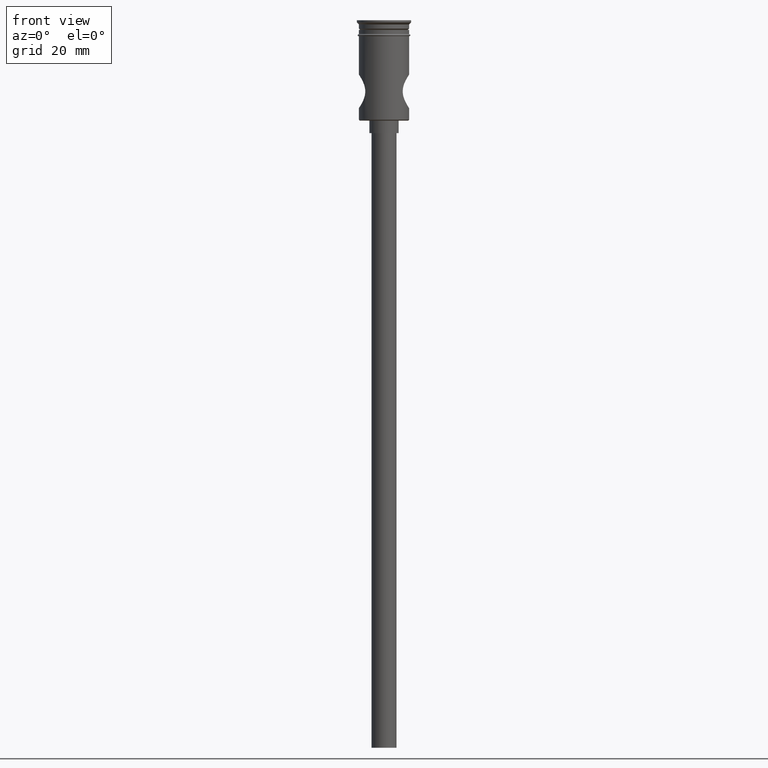
[diagram: clean part render]
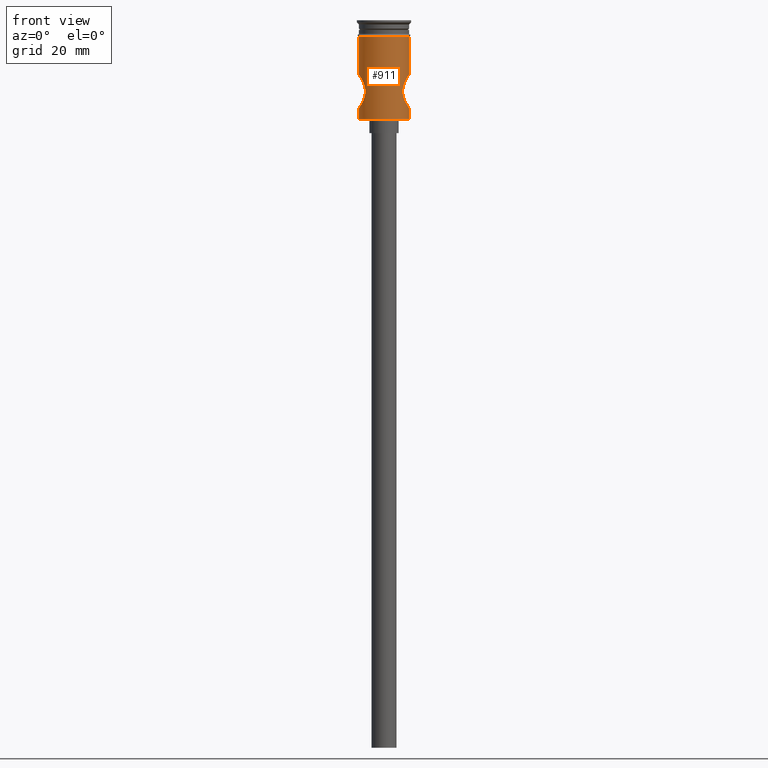
[diagram: same view with one face highlighted and labeled with its STEP entity id]
A machine part, front view. The second image highlights one B-rep face of the part: STEP entity #911.
In plain terms, the highlighted cylindrical surface (edge-blend (fillet) strip) has radius 6 mm, axis along (-0, -0, 1).
Its self-contained STEP definition (entity closure, byte-faithful):
#31 = VERTEX_POINT ( 'NONE', #142 ) ;
#77 = VERTEX_POINT ( 'NONE', #1366 ) ;
#78 = CARTESIAN_POINT ( 'NONE',  ( -5.647456945233588321, -2.039167636317594123, -13.54932708310013645 ) ) ;
#81 = CARTESIAN_POINT ( 'NONE',  ( 5.999999999999997335, -0.2693226933892790553, -13.00000000000000000 ) ) ;
#85 = CARTESIAN_POINT ( 'NONE',  ( -4.589371484154255221, -3.865580797907776311, -15.93709879797099838 ) ) ;
#91 = CARTESIAN_POINT ( 'NONE',  ( -5.910558363407835358, -1.065472474882100284, -20.86475527808674713 ) ) ;
#104 = ORIENTED_EDGE ( 'NONE', *, *, #870, .F. ) ;
#106 = CARTESIAN_POINT ( 'NONE',  ( 5.856852607584091430, -1.326405963621355211, -20.78272040109924745 ) ) ;
#142 = CARTESIAN_POINT ( 'NONE',  ( 5.999999999999997335, 0.000000000000000000, -23.80000000000000782 ) ) ;
#177 = CARTESIAN_POINT ( 'NONE',  ( 5.999999999999997335, 0.000000000000000000, 0.000000000000000000 ) ) ;
#187 = CARTESIAN_POINT ( 'NONE',  ( -5.383168773068585544, -2.657528158016941422, -20.00025070472698729 ) ) ;
#198 = CARTESIAN_POINT ( 'NONE',  ( -5.963516332756119809, -0.6739983983561910197, -13.05488329690675897 ) ) ;
#205 = CYLINDRICAL_SURFACE ( 'NONE', #1060, 5.999999999999997335 ) ;
#208 = ORIENTED_EDGE ( 'NONE', *, *, #406, .T. ) ;
#225 = CARTESIAN_POINT ( 'NONE',  ( 4.905092851350609351, -3.459704293921745055, -19.02385203036241634 ) ) ;
#237 = CIRCLE ( 'NONE', #1062, 6.000000000000000000 ) ;
#245 = EDGE_CURVE ( 'NONE', #1154, #1356, #237, .T. ) ;
#252 = DIRECTION ( 'NONE',  ( -1.000000000000000000, 0.000000000000000000, 0.000000000000000000 ) ) ;
#265 = CARTESIAN_POINT ( 'NONE',  ( -5.999999999999997335, 0.000000000000000000, -21.00000000000000000 ) ) ;
#287 = CARTESIAN_POINT ( 'NONE',  ( -5.999999999999997335, 7.346847929928983029E-16, -13.00000000000000178 ) ) ;
#305 = CARTESIAN_POINT ( 'NONE',  ( -4.904334778770657266, -3.460699021627381633, -14.97811247933653789 ) ) ;
#306 = VECTOR ( 'NONE', #1023, 1000.000000000000000 ) ;
#315 = CARTESIAN_POINT ( 'NONE',  ( -4.496571596818669470, -3.973146032982571185, -16.46466415118837645 ) ) ;
#322 = CARTESIAN_POINT ( 'NONE',  ( -5.191140967328530920, -3.015547360259485998, -14.35969034782403853 ) ) ;
#324 = CARTESIAN_POINT ( 'NONE',  ( 5.910224399078535917, -1.067455424808947173, -20.86424616908553276 ) ) ;
#326 = CARTESIAN_POINT ( 'NONE',  ( -5.999999999999997335, 7.346847929928983029E-16, -13.00000000000000178 ) ) ;
#328 = FACE_OUTER_BOUND ( 'NONE', #604, .T. ) ;
#336 = CARTESIAN_POINT ( 'NONE',  ( 4.815345988703962909, -3.581725270876520373, -18.79943117160749466 ) ) ;
#369 = EDGE_CURVE ( 'NONE', #31, #77, #529, .T. ) ;
#406 = EDGE_CURVE ( 'NONE', #1323, #1356, #645, .T. ) ;
#407 = ORIENTED_EDGE ( 'NONE', *, *, #713, .T. ) ;
#415 = CARTESIAN_POINT ( 'NONE',  ( 5.383857059222176389, -2.656136703825480172, -20.00147985586160360 ) ) ;
#420 = CARTESIAN_POINT ( 'NONE',  ( -4.478683235531862650, -3.992711086781060015, -17.27669624262845005 ) ) ;
#424 = CARTESIAN_POINT ( 'NONE',  ( 5.999999999999997335, -0.2733318867810513031, -21.00000000000000355 ) ) ;
#428 = CARTESIAN_POINT ( 'NONE',  ( -5.092719808373196599, -3.176950723007532229, -19.44358897106424067 ) ) ;
#433 = CARTESIAN_POINT ( 'NONE',  ( -5.981377723958397397, -0.5413430384848010313, -20.97221760090189235 ) ) ;
#435 = CARTESIAN_POINT ( 'NONE',  ( -5.999999999999997335, 7.347880794884116778E-16, 0.000000000000000000 ) ) ;
#436 = CARTESIAN_POINT ( 'NONE',  ( 4.903670365680997456, -3.461664301119387943, -14.97966456857568751 ) ) ;
#445 = EDGE_CURVE ( 'NONE', #587, #1154, #763, .T. ) ;
#461 = CARTESIAN_POINT ( 'NONE',  ( -5.999999999999997335, 7.347880794884116778E-16, -23.80000000000000782 ) ) ;
#523 = CARTESIAN_POINT ( 'NONE',  ( 4.812980838828969432, -3.584886833645908766, -15.20686804412652116 ) ) ;
#529 = LINE ( 'NONE', #977, #1230 ) ;
#530 = CARTESIAN_POINT ( 'NONE',  ( 4.471969905858021122, -4.000185648662160531, -16.72948623710961868 ) ) ;
#534 = CIRCLE ( 'NONE', #1374, 5.999999999999997335 ) ;
#535 = CARTESIAN_POINT ( 'NONE',  ( -4.472242783135714106, -3.999880562432159614, -17.13916142668633213 ) ) ;
#538 = DIRECTION ( 'NONE',  ( -0.000000000000000000, -0.000000000000000000, 1.000000000000000000 ) ) ;
#541 = CARTESIAN_POINT ( 'NONE',  ( -4.904969006695425016, -3.459781783056855797, -19.02337662573054899 ) ) ;
#543 = CARTESIAN_POINT ( 'NONE',  ( 5.092437400807709125, -3.177449308448083709, -14.55690956341038245 ) ) ;
#587 = VERTEX_POINT ( 'NONE', #287 ) ;
#588 = CARTESIAN_POINT ( 'NONE',  ( -6.000000000000000000, 7.347880794884119736E-16, -3.799999999999998490 ) ) ;
#604 = EDGE_LOOP ( 'NONE', ( #689, #407, #903, #104, #208, #632, #668, #1047 ) ) ;
#624 = CARTESIAN_POINT ( 'NONE',  ( 5.647852088979878005, -2.038182248857269396, -13.54866401616082072 ) ) ;
#629 = CARTESIAN_POINT ( 'NONE',  ( -5.977293684551374220, -0.5386543696670904602, -13.03412758888619116 ) ) ;
#632 = ORIENTED_EDGE ( 'NONE', *, *, #245, .F. ) ;
#637 = CARTESIAN_POINT ( 'NONE',  ( -5.857462785930374949, -1.323879775164644057, -20.78366906037869910 ) ) ;
#645 = LINE ( 'NONE', #177, #874 ) ;
#646 = CARTESIAN_POINT ( 'NONE',  ( 5.981315622377779029, -0.5422886287917132453, -20.97212570072115057 ) ) ;
#649 = CARTESIAN_POINT ( 'NONE',  ( -4.503329929757906136, -3.964891535778144682, -17.54583673630848040 ) ) ;
#659 = LINE ( 'NONE', #1221, #1376 ) ;
#665 = CARTESIAN_POINT ( 'NONE',  ( 5.189877563605831412, -3.017637752822130981, -14.36220871751616279 ) ) ;
#668 = ORIENTED_EDGE ( 'NONE', *, *, #445, .F. ) ;
#674 = DIRECTION ( 'NONE',  ( -0.000000000000000000, -0.000000000000000000, 1.000000000000000000 ) ) ;
#689 = ORIENTED_EDGE ( 'NONE', *, *, #882, .F. ) ;
#695 = DIRECTION ( 'NONE',  ( -0.000000000000000000, -0.000000000000000000, 1.000000000000000000 ) ) ;
#713 = EDGE_CURVE ( 'NONE', #798, #31, #534, .T. ) ;
#733 = CARTESIAN_POINT ( 'NONE',  ( 5.726042320256659046, -1.810021776766354673, -13.42313354859388497 ) ) ;
#737 = CARTESIAN_POINT ( 'NONE',  ( -4.591041808995889539, -3.863597314276565164, -18.06934695620069320 ) ) ;
#740 = B_SPLINE_CURVE_WITH_KNOTS ( 'NONE', 3,
 ( #868, #1324, #433, #91, #637, #877, #1354, #1335, #187, #1448, #428, #541, #1093, #1471, #737, #1109, #649, #420, #535, #1206, #315, #85, #1345, #1341, #305, #1102, #322, #766, #1235, #78, #996, #1116, #895, #198, #629, #748, #1214, #326 ),
 .UNSPECIFIED., .F., .F.,
 ( 4, 2, 2, 2, 2, 2, 2, 2, 2, 2, 2, 2, 2, 2, 2, 2, 2, 2, 4 ),
 ( 0.000000000000000000, 0.0008079931812297209146, 0.001615986362459441612, 0.002423979543689161985, 0.003231972724918882791, 0.004039965906148603597, 0.004847959087378323970, 0.005655952268608045209, 0.006059948859222905396, 0.006463945449837766449, 0.007271938631067487689, 0.008079931812297208929, 0.008887924993526937975, 0.009695918174756667021, 0.01050391135598639780, 0.01131190453721612511, 0.01211989771844585589, 0.01252389430906072042, 0.01292789089967558668 ),
 .UNSPECIFIED. ) ;
#748 = CARTESIAN_POINT ( 'NONE',  ( -5.995459719443723579, -0.2695386314927114557, -13.00680060135632665 ) ) ;
#751 = CARTESIAN_POINT ( 'NONE',  ( 4.496976719000949529, -3.972684566356398328, -16.46183091757619721 ) ) ;
#763 = LINE ( 'NONE', #435, #306 ) ;
#766 = CARTESIAN_POINT ( 'NONE',  ( -5.383657517074644794, -2.656633614838566082, -13.99882376761189384 ) ) ;
#778 = CARTESIAN_POINT ( 'NONE',  ( 4.659573210257435427, -3.780337466250410561, -15.68607491293215084 ) ) ;
#798 = VERTEX_POINT ( 'NONE', #461 ) ;
#811 = CARTESIAN_POINT ( 'NONE',  ( 0.000000000000000000, 0.000000000000000000, -3.799999999999998490 ) ) ;
#819 = CARTESIAN_POINT ( 'NONE',  ( 0.000000000000000000, 0.000000000000000000, -23.80000000000000782 ) ) ;
#868 = CARTESIAN_POINT ( 'NONE',  ( -5.999999999999997335, 0.000000000000000000, -21.00000000000000000 ) ) ;
#870 = EDGE_CURVE ( 'NONE', #1323, #77, #1358, .T. ) ;
#871 = CARTESIAN_POINT ( 'NONE',  ( 4.566410052139550757, -3.892191516930989525, -16.06790164049536429 ) ) ;
#874 = VECTOR ( 'NONE', #887, 1000.000000000000000 ) ;
#877 = CARTESIAN_POINT ( 'NONE',  ( -5.726993910597676596, -1.806673378235915894, -20.57837121075087694 ) ) ;
#881 = DIRECTION ( 'NONE',  ( -0.000000000000000000, -0.000000000000000000, 1.000000000000000000 ) ) ;
#882 = EDGE_CURVE ( 'NONE', #798, #974, #659, .T. ) ;
#887 = DIRECTION ( 'NONE',  ( -0.000000000000000000, -0.000000000000000000, 1.000000000000000000 ) ) ;
#892 = CARTESIAN_POINT ( 'NONE',  ( 4.590872927876619158, -3.863799755992654461, -18.06881075205812692 ) ) ;
#895 = CARTESIAN_POINT ( 'NONE',  ( -5.909734172871756286, -1.070628588321905106, -13.13649990372544707 ) ) ;
#903 = ORIENTED_EDGE ( 'NONE', *, *, #369, .T. ) ;
#909 = CARTESIAN_POINT ( 'NONE',  ( 5.999999999999997335, 1.032865049536733409E-19, -13.00000000000000178 ) ) ;
#911 = ADVANCED_FACE ( 'NONE', ( #328 ), #205, .T. ) ;
#943 = CARTESIAN_POINT ( 'NONE',  ( 5.857856019569841699, -1.322596816769211481, -13.21570480751898025 ) ) ;
#974 = VERTEX_POINT ( 'NONE', #265 ) ;
#977 = CARTESIAN_POINT ( 'NONE',  ( 5.999999999999997335, 0.000000000000000000, 0.000000000000000000 ) ) ;
#991 = CARTESIAN_POINT ( 'NONE',  ( 4.472303672293368670, -3.999812486286545177, -17.27597643780235970 ) ) ;
#996 = CARTESIAN_POINT ( 'NONE',  ( -5.726539468168462044, -1.808257897405587622, -13.42234802356430201 ) ) ;
#1003 = CARTESIAN_POINT ( 'NONE',  ( 5.999999999999997335, 0.000000000000000000, -21.00000000000000355 ) ) ;
#1023 = DIRECTION ( 'NONE',  ( -0.000000000000000000, -0.000000000000000000, 1.000000000000000000 ) ) ;
#1047 = ORIENTED_EDGE ( 'NONE', *, *, #1189, .F. ) ;
#1060 = AXIS2_PLACEMENT_3D ( 'NONE', #1112, #538, #1460 ) ;
#1062 = AXIS2_PLACEMENT_3D ( 'NONE', #811, #695, #1162 ) ;
#1093 = CARTESIAN_POINT ( 'NONE',  ( -4.815777407978871771, -3.581151401136684953, -18.80060207983888887 ) ) ;
#1096 = CARTESIAN_POINT ( 'NONE',  ( 5.999999999999997335, 1.032865049536733409E-19, -13.00000000000000178 ) ) ;
#1102 = CARTESIAN_POINT ( 'NONE',  ( -5.092532074683506771, -3.177271535275487224, -14.55676189133447807 ) ) ;
#1109 = CARTESIAN_POINT ( 'NONE',  ( -4.521451790501866519, -3.944329598407791071, -17.67822252913731162 ) ) ;
#1112 = CARTESIAN_POINT ( 'NONE',  ( 0.000000000000000000, 0.000000000000000000, 0.000000000000000000 ) ) ;
#1116 = CARTESIAN_POINT ( 'NONE',  ( -5.857601659980625541, -1.323462767520508399, -13.21610827440704661 ) ) ;
#1122 = CARTESIAN_POINT ( 'NONE',  ( 5.094941177298610846, -3.173493986384484877, -19.44836001449218799 ) ) ;
#1127 = CARTESIAN_POINT ( 'NONE',  ( 5.649709804834208704, -2.033012498713171468, -20.45435978024744017 ) ) ;
#1143 = CARTESIAN_POINT ( 'NONE',  ( 6.000000000000000000, 0.000000000000000000, -3.799999999999998490 ) ) ;
#1154 = VERTEX_POINT ( 'NONE', #588 ) ;
#1162 = DIRECTION ( 'NONE',  ( 1.000000000000000000, 0.000000000000000000, 0.000000000000000000 ) ) ;
#1189 = EDGE_CURVE ( 'NONE', #974, #587, #740, .T. ) ;
#1193 = DIRECTION ( 'NONE',  ( -0.000000000000000000, -0.000000000000000000, 1.000000000000000000 ) ) ;
#1206 = CARTESIAN_POINT ( 'NONE',  ( -4.471926352484669742, -4.000234342895624629, -16.73210661165612478 ) ) ;
#1214 = CARTESIAN_POINT ( 'NONE',  ( -5.999999999999997335, -0.1348394930680405501, -13.00000000000000355 ) ) ;
#1221 = CARTESIAN_POINT ( 'NONE',  ( -5.999999999999997335, 7.347880794884116778E-16, 0.000000000000000000 ) ) ;
#1230 = VECTOR ( 'NONE', #1193, 1000.000000000000000 ) ;
#1235 = CARTESIAN_POINT ( 'NONE',  ( -5.476434227958207224, -2.461837270032277036, -13.83697842493743124 ) ) ;
#1292 = CARTESIAN_POINT ( 'NONE',  ( 5.476104105474130179, -2.462661959051751115, -13.83753213007001825 ) ) ;
#1314 = CARTESIAN_POINT ( 'NONE',  ( 5.909894408226809226, -1.069461442341119284, -13.13625666965422312 ) ) ;
#1320 = CARTESIAN_POINT ( 'NONE',  ( 5.381440153112923674, -2.661027735845788555, -14.00283269631730754 ) ) ;
#1323 = VERTEX_POINT ( 'NONE', #909 ) ;
#1324 = CARTESIAN_POINT ( 'NONE',  ( -5.999999999999997335, -0.2736934833754732788, -20.99999999999999645 ) ) ;
#1327 = CARTESIAN_POINT ( 'NONE',  ( 4.695721265758812102, -3.735538961856250673, -15.56388279734573210 ) ) ;
#1335 = CARTESIAN_POINT ( 'NONE',  ( -5.476259375248749173, -2.462490082215232690, -20.16276605017704782 ) ) ;
#1337 = CARTESIAN_POINT ( 'NONE',  ( 4.594981970458709597, -3.858589710197852796, -15.93762721160692841 ) ) ;
#1341 = CARTESIAN_POINT ( 'NONE',  ( -4.813287987224463826, -3.584502662014732888, -15.20585560854699025 ) ) ;
#1343 = CARTESIAN_POINT ( 'NONE',  ( 5.726721313513248646, -1.807412029573764567, -20.57793071042115685 ) ) ;
#1345 = CARTESIAN_POINT ( 'NONE',  ( -4.655957912614353766, -3.786615440986035086, -15.68502588106870199 ) ) ;
#1348 = CARTESIAN_POINT ( 'NONE',  ( 5.192588128681415505, -3.012973207551336685, -19.64309212195294307 ) ) ;
#1354 = CARTESIAN_POINT ( 'NONE',  ( -5.649252793255032934, -2.034506580944978271, -20.45365450866940193 ) ) ;
#1356 = VERTEX_POINT ( 'NONE', #1143 ) ;
#1358 = B_SPLINE_CURVE_WITH_KNOTS ( 'NONE', 3,
 ( #1096, #81, #1429, #1314, #943, #733, #624, #1292, #1320, #665, #543, #436, #523, #1327, #778, #1337, #871, #751, #530, #991, #1466, #892, #1445, #336, #225, #1122, #1348, #415, #1451, #1127, #1343, #106, #324, #646, #424, #1003 ),
 .UNSPECIFIED., .F., .F.,
 ( 4, 2, 2, 2, 2, 2, 2, 2, 2, 2, 2, 2, 2, 2, 2, 2, 2, 4 ),
 ( 0.01292789089967558841, 0.01373481658167572013, 0.01454174226367585185, 0.01534866794567598357, 0.01615559362767611529, 0.01696251930967624874, 0.01776944499167637873, 0.01817290783267644372, 0.01857637067367650524, 0.01938329635567663523, 0.02019022203767676174, 0.02099714771967688826, 0.02180407340167701824, 0.02261099908367714129, 0.02341792476567727127, 0.02422485044767740126, 0.02503177612967752430, 0.02583870181167765429 ),
 .UNSPECIFIED. ) ;
#1366 = CARTESIAN_POINT ( 'NONE',  ( 5.999999999999997335, 0.000000000000000000, -21.00000000000000355 ) ) ;
#1374 = AXIS2_PLACEMENT_3D ( 'NONE', #819, #674, #252 ) ;
#1376 = VECTOR ( 'NONE', #881, 1000.000000000000000 ) ;
#1429 = CARTESIAN_POINT ( 'NONE',  ( 5.981295349059708499, -0.5428679769166553370, -13.02790298971887850 ) ) ;
#1445 = CARTESIAN_POINT ( 'NONE',  ( 4.658564655011906197, -3.783396392401491504, -18.32386562586675538 ) ) ;
#1448 = CARTESIAN_POINT ( 'NONE',  ( -5.191849950367998012, -3.014242200430727436, -19.64164800058794214 ) ) ;
#1451 = CARTESIAN_POINT ( 'NONE',  ( 5.478456530086701193, -2.457412205291197083, -20.16652278763330486 ) ) ;
#1460 = DIRECTION ( 'NONE',  ( 1.000000000000000000, 0.000000000000000000, 0.000000000000000000 ) ) ;
#1466 = CARTESIAN_POINT ( 'NONE',  ( 4.497954016143989264, -3.971583117973676025, -17.54574033674490607 ) ) ;
#1471 = CARTESIAN_POINT ( 'NONE',  ( -4.658800709564933307, -3.783111596241941932, -18.32471878455887548 ) ) ;